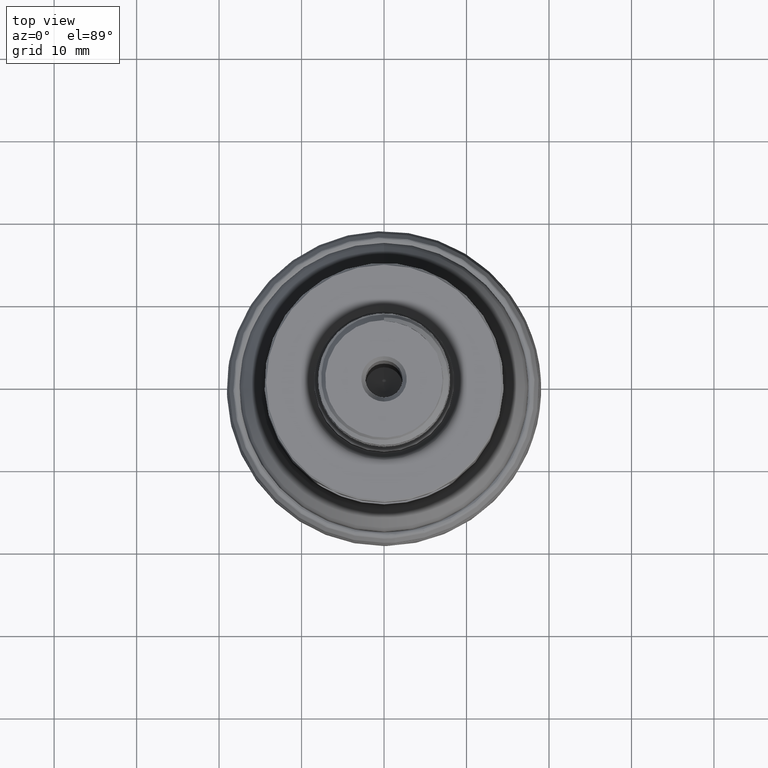
[diagram: clean part render]
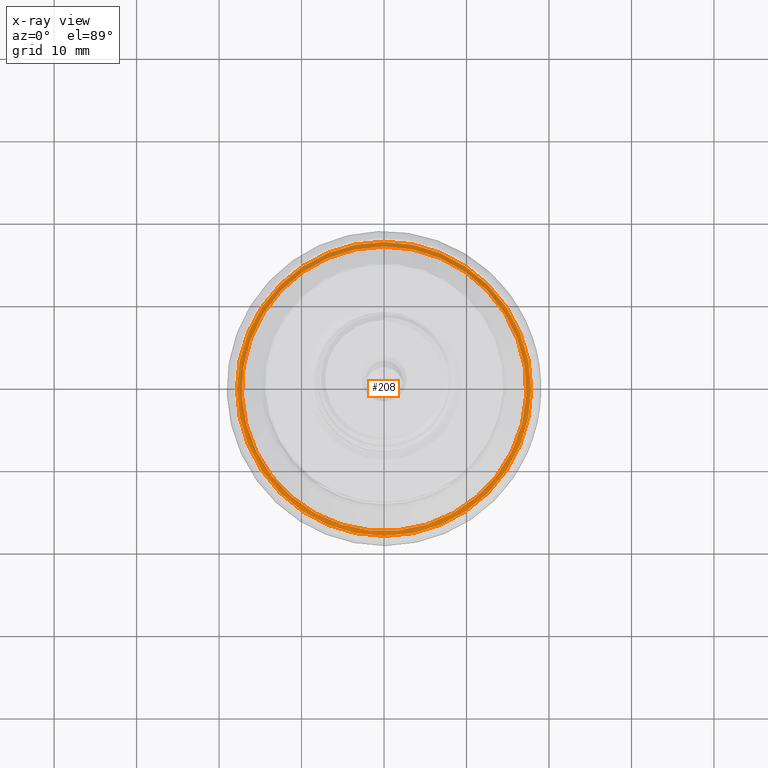
[diagram: x-ray — body ghosted, one internal face saturated and labeled with its STEP entity id]
A machine part, top view, then the same camera in x-ray: the body is ghosted and one INTERNAL B-rep face — a face not visible from any outside direction — is saturated and labeled: STEP entity #208.
In plain terms, the highlighted planar face has unit normal (0, -0, -1).
Its self-contained STEP definition (entity closure, byte-faithful):
#196=PLANE('',#1031);
#208=ADVANCED_FACE('',(#332,#333),#196,.T.);
#332=FACE_BOUND('',#434,.T.);
#333=FACE_BOUND('',#435,.T.);
#434=EDGE_LOOP('',(#565));
#435=EDGE_LOOP('',(#566));
#565=ORIENTED_EDGE('',*,*,#831,.T.);
#566=ORIENTED_EDGE('',*,*,#832,.T.);
#751=VERTEX_POINT('',#1765);
#752=VERTEX_POINT('',#1767);
#831=EDGE_CURVE('',#751,#751,#912,.T.);
#832=EDGE_CURVE('',#752,#752,#913,.T.);
#912=CIRCLE('',#1029,17.2616374165354);
#913=CIRCLE('',#1030,17.8378699069769);
#1029=AXIS2_PLACEMENT_3D('',#1764,#1147,#1148);
#1030=AXIS2_PLACEMENT_3D('',#1766,#1149,#1150);
#1031=AXIS2_PLACEMENT_3D('',#1768,#1151,#1152);
#1147=DIRECTION('',(0.,1.17145536458252E-15,1.));
#1148=DIRECTION('',(0.,1.,-1.17454562022357E-15));
#1149=DIRECTION('',(0.,-1.17145536458252E-15,-1.));
#1150=DIRECTION('',(0.,1.,-1.17307178705154E-15));
#1151=DIRECTION('',(0.,-1.17145536458252E-15,-1.));
#1152=DIRECTION('',(0.,1.,-1.17148044737059E-15));
#1764=CARTESIAN_POINT('',(0.,5.85727682291262E-16,0.5));
#1765=CARTESIAN_POINT('',(0.,17.2616374165354,0.49999999999998));
#1766=CARTESIAN_POINT('',(0.,5.85727682291262E-16,0.5));
#1767=CARTESIAN_POINT('',(0.,17.8378699069769,0.499999999999979));
#1768=CARTESIAN_POINT('',(18.0276628203199,5.85727682291262E-16,0.5));